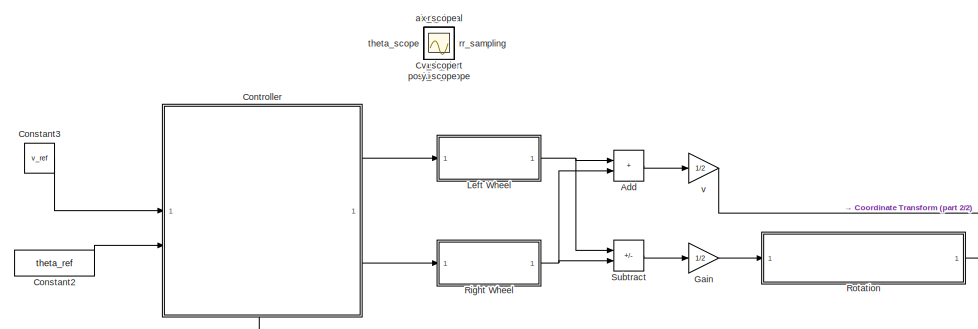
[diagram: root canvas - part 1/2, middle left region]
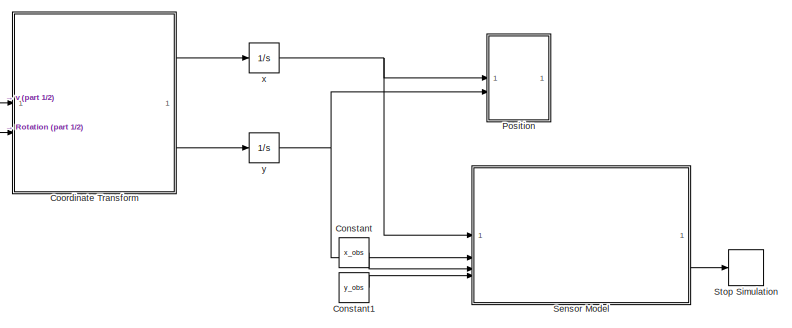
[diagram: root canvas - part 2/2, middle right region]
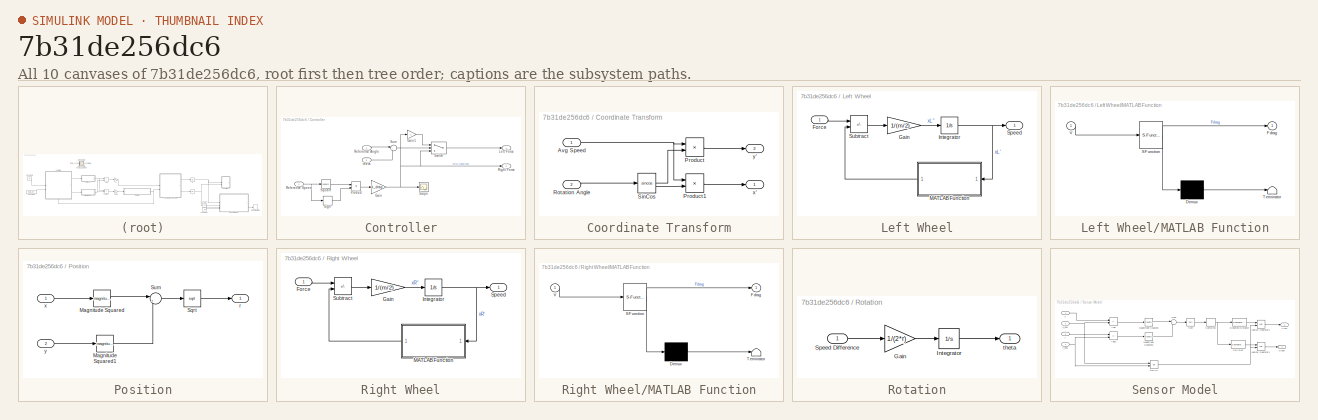
[diagram: thumbnail index - all 10 canvases of the model, root first then tree order]
MODEL slx_7b31de256dc6
KIND model
CONFIG AbsTol = auto
CONFIG EnableMultiTasking = off
CONFIG FixedStep = auto
CONFIG MaxStep = auto
CONFIG MinStep = auto
CONFIG RelTol = 1e-3
CONFIG SampleTimeConstraint = Unconstrained
CONFIG SolverName = VariableStepAuto
CONFIG StartTime = 0.0
CONFIG StopTime = 20.0
BLOCK [Sum] Add
  IconShape = rectangular
BLOCK [Constant] Constant
  Value = x_obs
BLOCK [Constant] Constant1
  Value = y_obs
BLOCK [Constant] Constant2
  Value = theta_ref
BLOCK [Constant] Constant3
  Value = v_ref
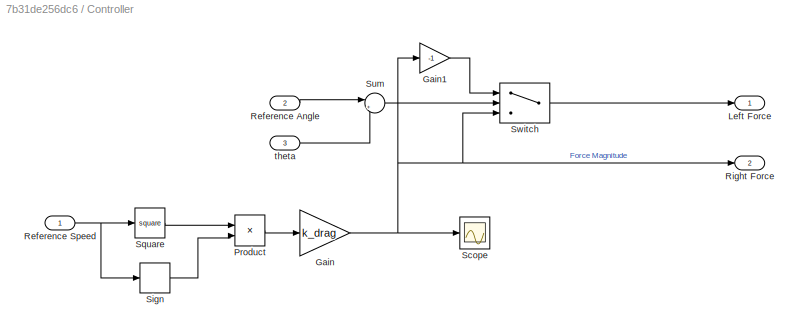
BLOCK [SubSystem] Controller
  PortSchema = {"entries":[{"content":{"sides":[{"content":{"connectorIds":["In1","In2"]},"type":"ConnectorPlacement.EquallySpacedRectSide","uuid":"ba94545e-9c5b-44f0-b142-601db8af74fa"},{"content":{"connectorIds":["Out1","Out2"],"side":"RIGHT"},"type":"ConnectorPlacement.EquallySpacedRectSide","uuid":"af029479-1ae4-4d42-872b-d9816a1308e5"},{"content":{"side":"TOP"},"type":"ConnectorPlacement.EquallySpacedRectSi...<+384ch>
BLOCK [Gain] Controller/Gain
  Gain = k_drag
BLOCK [Gain] Controller/Gain1
  Gain = -1
BLOCK [Outport] Controller/Left Force
BLOCK [Product] Controller/Product
BLOCK [Inport] Controller/Reference Angle
  Port = 2
BLOCK [Inport] Controller/Reference Speed
BLOCK [Outport] Controller/Right Force
  Port = 2
BLOCK [Scope] Controller/Scope
  Floating = off
  NumInputPorts = 1
  ScopeSpecificationString = Simulink.scopes.TimeScopeBlockCfg('CurrentConfiguration', extmgr.ConfigurationSet(extmgr.Configuration('Core','General UI',true),extmgr.Configuration('Core','Source UI',true),extmgr.Configuration('Sources','WiredSimulink',true,'DataLoggingVariableName','ScopeData1'),extmgr.Configuration('Visuals','Time Domain',true,'SerializedDisplays',{struct('MinYLimReal','6.5','MaxYLimReal','8.5','YLabelReal','...<+1375ch>
BLOCK [Signum] Controller/Sign
BLOCK [Math] Controller/Square
  Operator = square
BLOCK [Sum] Controller/Sum
  Inputs = |+-
BLOCK [Switch] Controller/Switch
  Criteria = u2 > Threshold
  InputSameDT = off
  SaturateOnIntegerOverflow = off
BLOCK [Inport] Controller/theta
  Port = 3
BLOCK [SubSystem] Coordinate Transform
BLOCK [Inport] Coordinate Transform/Avg Speed
BLOCK [Product] Coordinate Transform/Product
BLOCK [Product] Coordinate Transform/Product1
BLOCK [Inport] Coordinate Transform/Rotation Angle
  Port = 2
BLOCK [Trigonometry] Coordinate Transform/SinCos
  Operator = sincos
BLOCK [Outport] Coordinate Transform/x'
BLOCK [Outport] Coordinate Transform/y'
  Port = 2
BLOCK [Scope] Crash_alert
  Floating = off
  IOType = viewer
  NumInputPorts = 1
  ScopeSpecificationString = Simulink.scopes.TimeScopeBlockCfg('CurrentConfiguration', extmgr.ConfigurationSet(extmgr.Configuration('Core','General UI',true),extmgr.Configuration('Core','Source UI',true),extmgr.Configuration('Sources','WiredSimulink',true,'DataLoggingVariableName','ScopeData5'),extmgr.Configuration('Visuals','Time Domain',true,'SerializedDisplays',{struct('MinYLimReal','-1.00000','MaxYLimReal','1.00000','YLab...<+1406ch>
BLOCK [Gain] Gain
  Gain = 1/2
BLOCK [SubSystem] Left Wheel
BLOCK [Inport] Left Wheel/Force
BLOCK [Gain] Left Wheel/Gain
  Gain = 1/(m/2)
BLOCK [Integrator] Left Wheel/Integrator
BLOCK [SubSystem] Left Wheel/MATLAB Function
  ErrorFcn = Stateflow.Translate.translate
  PermitHierarchicalResolution = ExplicitOnly
  SFBlockType = MATLAB Function
  TreatAsAtomicUnit = on
BLOCK [Demux] Left Wheel/MATLAB Function/ Demux 
  Outputs = 1
BLOCK [S-Function] Left Wheel/MATLAB Function/ SFunction 
  EnableBusSupport = on
  FunctionName = sf_sfun
  Parameters = k_drag
  PortCounts = [1 2]
  SFcnIsStateOwnerBlock = off
  SFunctionDeploymentMode = off
  Tag = Stateflow S-Function 1
BLOCK [Terminator] Left Wheel/MATLAB Function/ Terminator 
BLOCK [Outport] Left Wheel/MATLAB Function/Fdrag
BLOCK [Inport] Left Wheel/MATLAB Function/V
BLOCK [Outport] Left Wheel/Speed
BLOCK [Sum] Left Wheel/Subtract
  IconShape = rectangular
  Inputs = +-
BLOCK [SubSystem] Position
BLOCK [Math] Position/Magnitude Squared
  Operator = magnitude^2
BLOCK [Math] Position/Magnitude Squared1
  Operator = magnitude^2
BLOCK [Sqrt] Position/Sqrt
BLOCK [Sum] Position/Sum
  Inputs = |++
BLOCK [Outport] Position/r
BLOCK [Inport] Position/x
BLOCK [Inport] Position/y
  Port = 2
BLOCK [SubSystem] Right Wheel
BLOCK [Inport] Right Wheel/Force
BLOCK [Gain] Right Wheel/Gain
  Gain = 1/(m/2)
BLOCK [Integrator] Right Wheel/Integrator
BLOCK [SubSystem] Right Wheel/MATLAB Function
  ErrorFcn = Stateflow.Translate.translate
  PermitHierarchicalResolution = ExplicitOnly
  SFBlockType = MATLAB Function
  TreatAsAtomicUnit = on
BLOCK [Demux] Right Wheel/MATLAB Function/ Demux 
  Outputs = 1
BLOCK [S-Function] Right Wheel/MATLAB Function/ SFunction 
  EnableBusSupport = on
  FunctionName = sf_sfun
  Parameters = k_drag
  PortCounts = [1 2]
  SFcnIsStateOwnerBlock = off
  SFunctionDeploymentMode = off
  Tag = Stateflow S-Function 2
BLOCK [Terminator] Right Wheel/MATLAB Function/ Terminator 
BLOCK [Outport] Right Wheel/MATLAB Function/Fdrag
BLOCK [Inport] Right Wheel/MATLAB Function/V
BLOCK [Outport] Right Wheel/Speed
BLOCK [Sum] Right Wheel/Subtract
  IconShape = rectangular
  Inputs = +-
BLOCK [SubSystem] Rotation
BLOCK [Gain] Rotation/Gain
  Gain = 1/(2*r)
BLOCK [Integrator] Rotation/Integrator
  InitialCondition = theta0
BLOCK [Inport] Rotation/Speed Difference
BLOCK [Outport] Rotation/theta
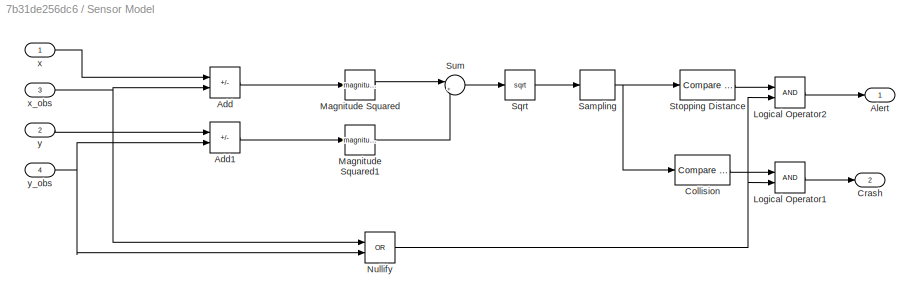
BLOCK [SubSystem] Sensor Model
BLOCK [Sum] Sensor Model/Add
  IconShape = rectangular
  Inputs = +-
BLOCK [Sum] Sensor Model/Add1
  IconShape = rectangular
  Inputs = +-
BLOCK [Outport] Sensor Model/Alert
BLOCK [Reference] Sensor Model/Collision  REF=simulink/Logic and Bit
Operations/Compare
To Constant
  SourceBlock = simulink/Logic and Bit\nOperations/Compare\nTo Constant
  SourceType = Compare To Constant
BLOCK [Outport] Sensor Model/Crash
  Port = 2
BLOCK [Logic] Sensor Model/Logical Operator1
  AllPortsSameDT = off
  OutDataTypeStr = boolean
BLOCK [Logic] Sensor Model/Logical Operator2
  AllPortsSameDT = off
  OutDataTypeStr = boolean
BLOCK [Math] Sensor Model/Magnitude Squared
  Operator = magnitude^2
BLOCK [Math] Sensor Model/Magnitude Squared1
  Operator = magnitude^2
BLOCK [Logic] Sensor Model/Nullify
  AllPortsSameDT = off
  Operator = OR
  OutDataTypeStr = boolean
BLOCK [ZeroOrderHold] Sensor Model/Sampling
  SampleTime = 0.25
BLOCK [Sqrt] Sensor Model/Sqrt
BLOCK [Reference] Sensor Model/Stopping Distance  REF=simulink/Logic and Bit
Operations/Compare
To Constant
  SourceBlock = simulink/Logic and Bit\nOperations/Compare\nTo Constant
  SourceType = Compare To Constant
BLOCK [Sum] Sensor Model/Sum
  Inputs = |++
BLOCK [Inport] Sensor Model/x
BLOCK [Inport] Sensor Model/x_obs
  Port = 3
BLOCK [Inport] Sensor Model/y
  Port = 2
BLOCK [Inport] Sensor Model/y_obs
  Port = 4
BLOCK [Stop] Stop Simulation
BLOCK [Sum] Subtract
  IconShape = rectangular
  Inputs = -+
BLOCK [Scope] alert_signal
  Floating = off
  IOType = viewer
  NumInputPorts = 1
  ScopeSpecificationString = Simulink.scopes.TimeScopeBlockCfg('CurrentConfiguration', extmgr.ConfigurationSet(extmgr.Configuration('Core','General UI',true),extmgr.Configuration('Core','Source UI',true),extmgr.Configuration('Sources','WiredSimulink',true,'DataLoggingVariableName','ScopeData5'),extmgr.Configuration('Visuals','Time Domain',true,'SerializedDisplays',{struct('MinYLimReal','-1.00000','MaxYLimReal','1.00000','YLab...<+1702ch>
BLOCK [Scope] position_scope
  Floating = off
  IOType = viewer
  NumInputPorts = 1
  ScopeSpecificationString = Simulink.scopes.TimeScopeBlockCfg('CurrentConfiguration', extmgr.ConfigurationSet(extmgr.Configuration('Core','General UI',true),extmgr.Configuration('Core','Source UI',true),extmgr.Configuration('Sources','WiredSimulink',true,'DataLoggingVariableName','ScopeData1'),extmgr.Configuration('Visuals','Time Domain',true,'SerializedDisplays',{struct('MinYLimReal','-10.54099','MaxYLimReal','10.75351','YL...<+1769ch>
BLOCK [Scope] rr_sampling
  Floating = off
  IOType = viewer
  NumInputPorts = 1
  ScopeSpecificationString = Simulink.scopes.TimeScopeBlockCfg('CurrentConfiguration', extmgr.ConfigurationSet(extmgr.Configuration('Core','General UI',true),extmgr.Configuration('Core','Source UI',true),extmgr.Configuration('Sources','WiredSimulink',true,'DataLoggingVariableName','ScopeData1'),extmgr.Configuration('Visuals','Time Domain',true,'SerializedDisplays',{struct('MinYLimReal','-1.07801','MaxYLimReal','9.70207','YLab...<+1396ch>
BLOCK [Scope] theta_scope
  Floating = off
  IOType = viewer
  NumInputPorts = 1
  ScopeSpecificationString = Simulink.scopes.TimeScopeBlockCfg('CurrentConfiguration', extmgr.ConfigurationSet(extmgr.Configuration('Core','General UI',true),extmgr.Configuration('Core','Source UI',true),extmgr.Configuration('Sources','WiredSimulink',true,'DataLoggingVariableName','ScopeData3'),extmgr.Configuration('Visuals','Time Domain',true,'SerializedDisplays',{struct('MinYLimReal','-0.56126','MaxYLimReal','5.05136','YLab...<+1367ch>
BLOCK [Gain] v
  Gain = 1/2
BLOCK [Scope] v_scope
  Floating = off
  IOType = viewer
  NumInputPorts = 1
  ScopeSpecificationString = Simulink.scopes.TimeScopeBlockCfg('CurrentConfiguration', extmgr.ConfigurationSet(extmgr.Configuration('Core','General UI',true),extmgr.Configuration('Core','Source UI',true),extmgr.Configuration('Sources','WiredSimulink',true,'DataLoggingVariableName','ScopeData2'),extmgr.Configuration('Visuals','Time Domain',true,'SerializedDisplays',{struct('MinYLimReal','-0.0625','MaxYLimReal','0.56249','YLabe...<+1687ch>
BLOCK [Integrator] x
BLOCK [Scope] x_scope
  Floating = off
  IOType = viewer
  NumInputPorts = 1
  ScopeSpecificationString = Simulink.scopes.TimeScopeBlockCfg('CurrentConfiguration', extmgr.ConfigurationSet(extmgr.Configuration('Core','General UI',true),extmgr.Configuration('Core','Source UI',true),extmgr.Configuration('Sources','WiredSimulink',true),extmgr.Configuration('Visuals','Time Domain',true,'SerializedDisplays',{struct('MinYLimReal','-0.08743','MaxYLimReal','0.78688','YLabelReal','','MinYLimMag','0.00000','MaxY...<+1350ch>
BLOCK [Integrator] y
BLOCK [Scope] y_scope
  Floating = off
  IOType = viewer
  NumInputPorts = 1
  ScopeSpecificationString = Simulink.scopes.TimeScopeBlockCfg('CurrentConfiguration', extmgr.ConfigurationSet(extmgr.Configuration('Core','General UI',true),extmgr.Configuration('Core','Source UI',true),extmgr.Configuration('Sources','WiredSimulink',true,'DataLoggingVariableName','ScopeData1'),extmgr.Configuration('Visuals','Time Domain',true,'SerializedDisplays',{struct('MinYLimReal','-1.00000','MaxYLimReal','1.00000','YLab...<+1393ch>
LINE Add:1 -> v:1
LINE Constant1:1 -> Sensor Model:4
LINE Constant2:1 -> Controller:2
LINE Constant3:1 -> Controller:1
LINE Constant:1 -> Sensor Model:3
LINE Controller/Gain1:1 -> Controller/Switch:1
NET Controller/Gain:1 -> Controller/Gain1:1, Controller/Right Force:1, Controller/Scope:1, Controller/Switch:3
LINE Controller/Product:1 -> Controller/Gain:1
LINE Controller/Reference Angle:1 -> Controller/Sum:1
NET Controller/Reference Speed:1 -> Controller/Sign:1, Controller/Square:1
LINE Controller/Sign:1 -> Controller/Product:2
LINE Controller/Square:1 -> Controller/Product:1
LINE Controller/Sum:1 -> Controller/Switch:2
LINE Controller/Switch:1 -> Controller/Left Force:1
LINE Controller/theta:1 -> Controller/Sum:2
LINE Controller:1 -> Left Wheel:1
LINE Controller:2 -> Right Wheel:1
NET Coordinate Transform/Avg Speed:1 -> Coordinate Transform/Product1:1, Coordinate Transform/Product:1
LINE Coordinate Transform/Product1:1 -> Coordinate Transform/x':1
LINE Coordinate Transform/Product:1 -> Coordinate Transform/y':1
LINE Coordinate Transform/Rotation Angle:1 -> Coordinate Transform/SinCos:1
LINE Coordinate Transform/SinCos:1 -> Coordinate Transform/Product:2
LINE Coordinate Transform/SinCos:2 -> Coordinate Transform/Product1:2
LINE Coordinate Transform:1 -> x:1
LINE Coordinate Transform:2 -> y:1
LINE Gain:1 -> Rotation:1
LINE Left Wheel/Force:1 -> Left Wheel/Subtract:1
LINE Left Wheel/Gain:1 -> Left Wheel/Integrator:1
NET Left Wheel/Integrator:1 -> Left Wheel/MATLAB Function:1, Left Wheel/Speed:1
LINE Left Wheel/MATLAB Function:1 -> Left Wheel/Subtract:2
LINE Left Wheel/Subtract:1 -> Left Wheel/Gain:1
NET Left Wheel:1 -> Add:1, Subtract:1
LINE Position/Magnitude Squared1:1 -> Position/Sum:2
LINE Position/Magnitude Squared:1 -> Position/Sum:1
LINE Position/Sqrt:1 -> Position/r:1
LINE Position/Sum:1 -> Position/Sqrt:1
LINE Position/x:1 -> Position/Magnitude Squared:1
LINE Position/y:1 -> Position/Magnitude Squared1:1
LINE Right Wheel/Force:1 -> Right Wheel/Subtract:1
LINE Right Wheel/Gain:1 -> Right Wheel/Integrator:1
NET Right Wheel/Integrator:1 -> Right Wheel/MATLAB Function:1, Right Wheel/Speed:1
LINE Right Wheel/MATLAB Function:1 -> Right Wheel/Subtract:2
LINE Right Wheel/Subtract:1 -> Right Wheel/Gain:1
NET Right Wheel:1 -> Add:2, Subtract:2
LINE Rotation/Gain:1 -> Rotation/Integrator:1
LINE Rotation/Integrator:1 -> Rotation/theta:1
LINE Rotation/Speed Difference:1 -> Rotation/Gain:1
NET Rotation:1 -> Controller:3, Coordinate Transform:2
LINE Sensor Model/Add1:1 -> Sensor Model/Magnitude Squared1:1
LINE Sensor Model/Add:1 -> Sensor Model/Magnitude Squared:1
LINE Sensor Model/Collision:1 -> Sensor Model/Logical Operator1:1
LINE Sensor Model/Logical Operator1:1 -> Sensor Model/Crash:1
LINE Sensor Model/Logical Operator2:1 -> Sensor Model/Alert:1
LINE Sensor Model/Magnitude Squared1:1 -> Sensor Model/Sum:2
LINE Sensor Model/Magnitude Squared:1 -> Sensor Model/Sum:1
NET Sensor Model/Nullify:1 -> Sensor Model/Logical Operator1:2, Sensor Model/Logical Operator2:2
NET Sensor Model/Sampling:1 -> Sensor Model/Collision:1, Sensor Model/Stopping Distance:1
LINE Sensor Model/Sqrt:1 -> Sensor Model/Sampling:1
LINE Sensor Model/Stopping Distance:1 -> Sensor Model/Logical Operator2:1
LINE Sensor Model/Sum:1 -> Sensor Model/Sqrt:1
LINE Sensor Model/x:1 -> Sensor Model/Add:1
NET Sensor Model/x_obs:1 -> Sensor Model/Add:2, Sensor Model/Nullify:1
LINE Sensor Model/y:1 -> Sensor Model/Add1:1
NET Sensor Model/y_obs:1 -> Sensor Model/Add1:2, Sensor Model/Nullify:2
LINE Sensor Model:2 -> Stop Simulation:1
LINE Subtract:1 -> Gain:1
LINE v:1 -> Coordinate Transform:1
NET x:1 -> Position:1, Sensor Model:1
NET y:1 -> Position:2, Sensor Model:2
note: NET lines group one-source signal fan-out (src -> all destinations, sorted); 1:1 wires keep LINE
CHART Right Wheel/MATLAB Function states=1 transitions=1
  STATE_LABEL 'eML_blk_kernel()'
  STATE_LABEL 'SCRIPT:\nfunction Fdrag=get_fdrag(V, k_drag)\n\nFdrag=k_drag*V*abs(V);'
CHART Left Wheel/MATLAB Function states=1 transitions=1
  STATE_LABEL 'eML_blk_kernel()'
  STATE_LABEL 'SCRIPT:\nfunction Fdrag=get_fdrag(V, k_drag)\n\nFdrag=k_drag*V*abs(V);'
CHART  states=0 transitions=0
CHART  states=0 transitions=0
